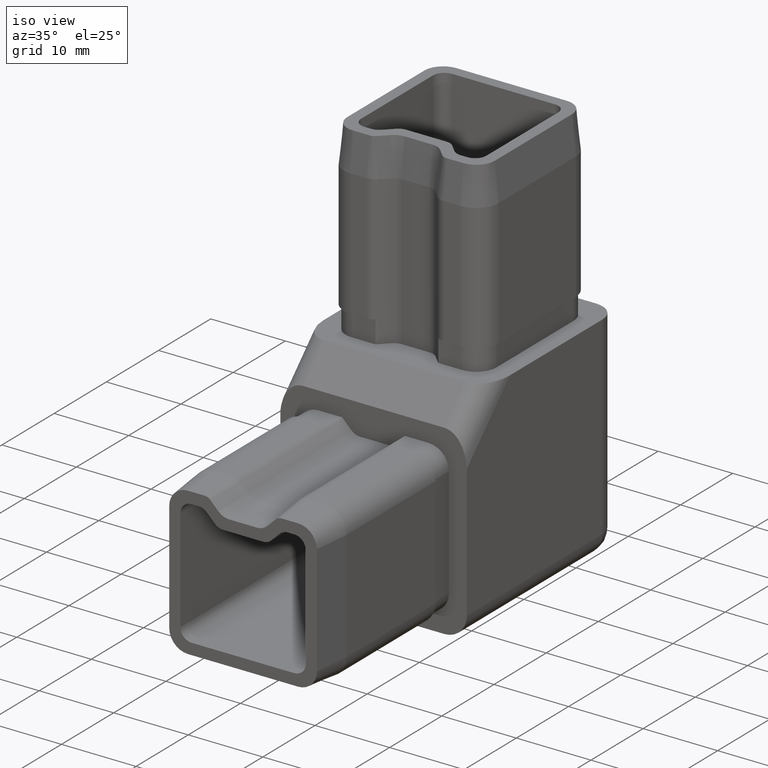
[diagram: clean part render]
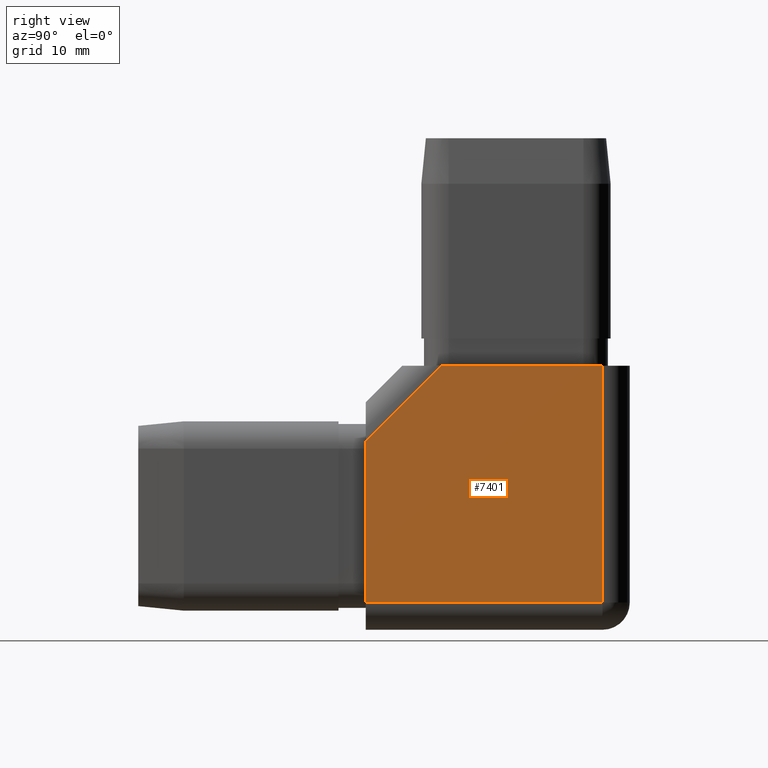
[diagram: tour spotlight — one face highlighted and labeled with its STEP entity id]
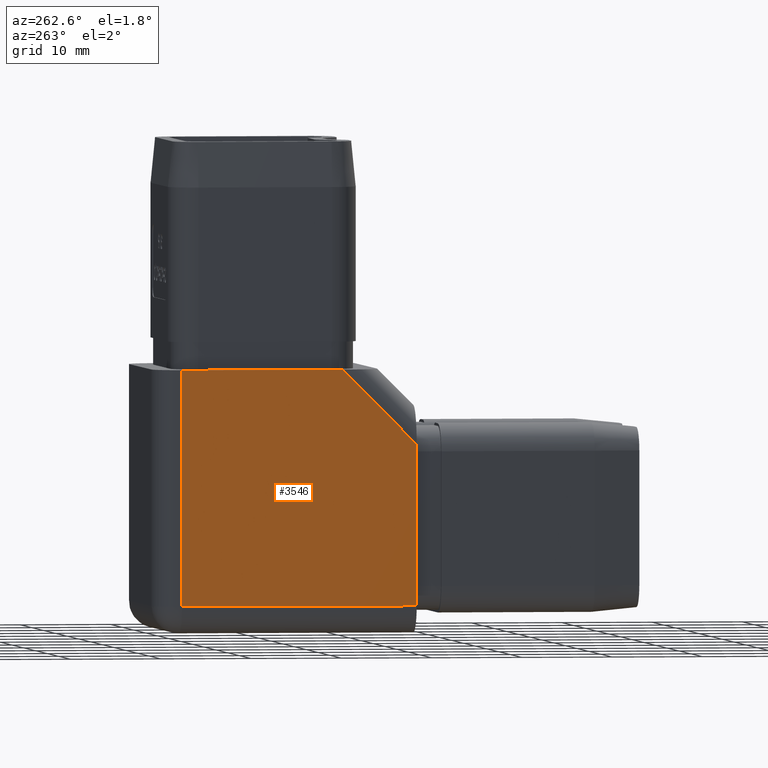
[diagram: tour spotlight — one face highlighted and labeled with its STEP entity id]
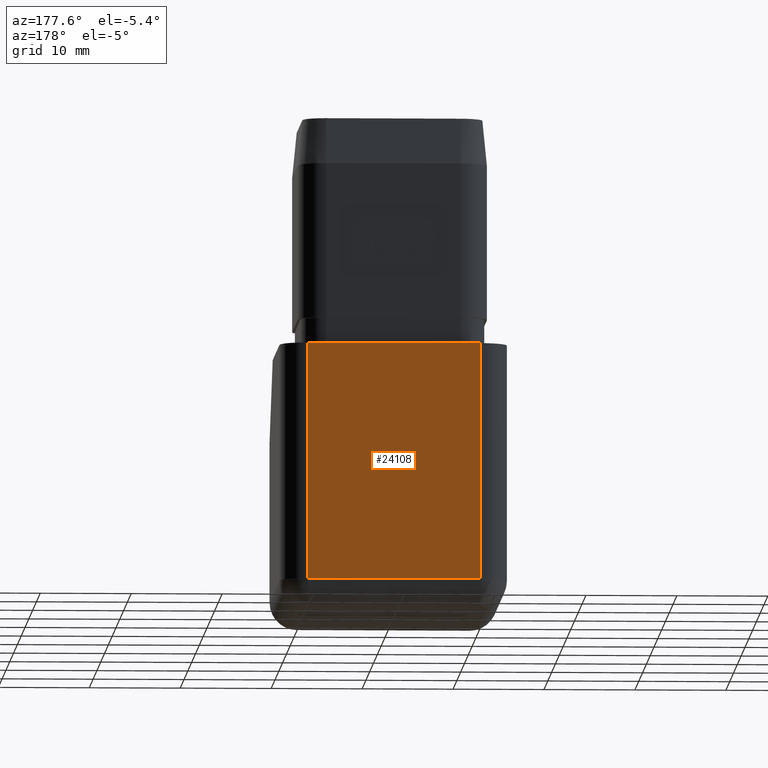
[diagram: tour spotlight — one face highlighted and labeled with its STEP entity id]
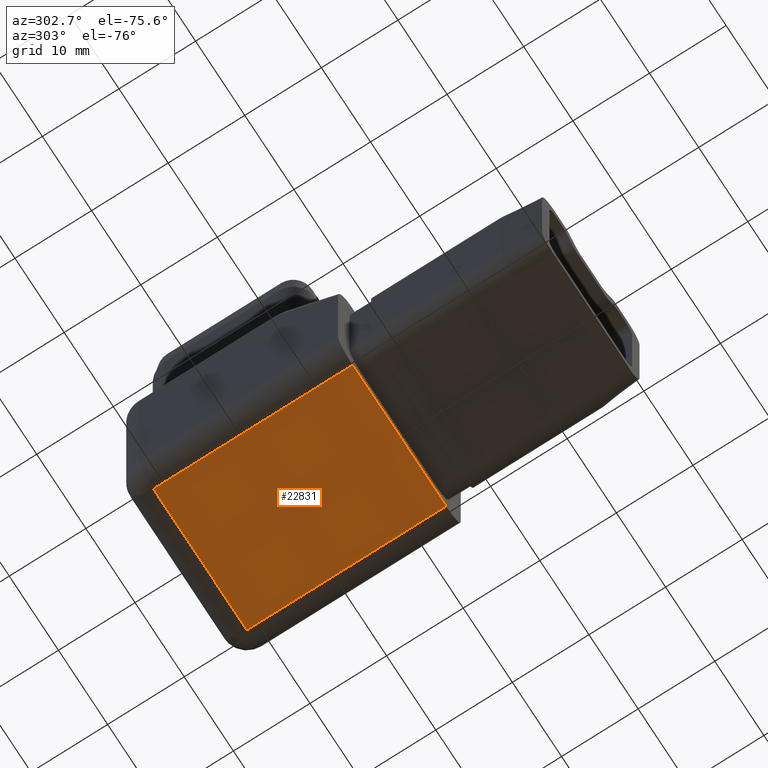
[diagram: tour spotlight — one face highlighted and labeled with its STEP entity id]
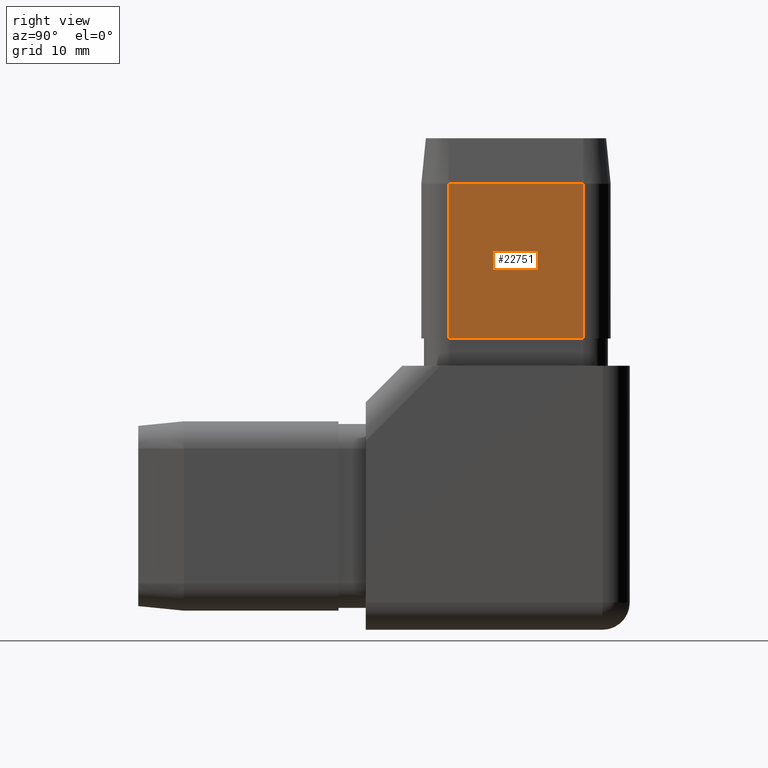
[diagram: tour spotlight — one face highlighted and labeled with its STEP entity id]
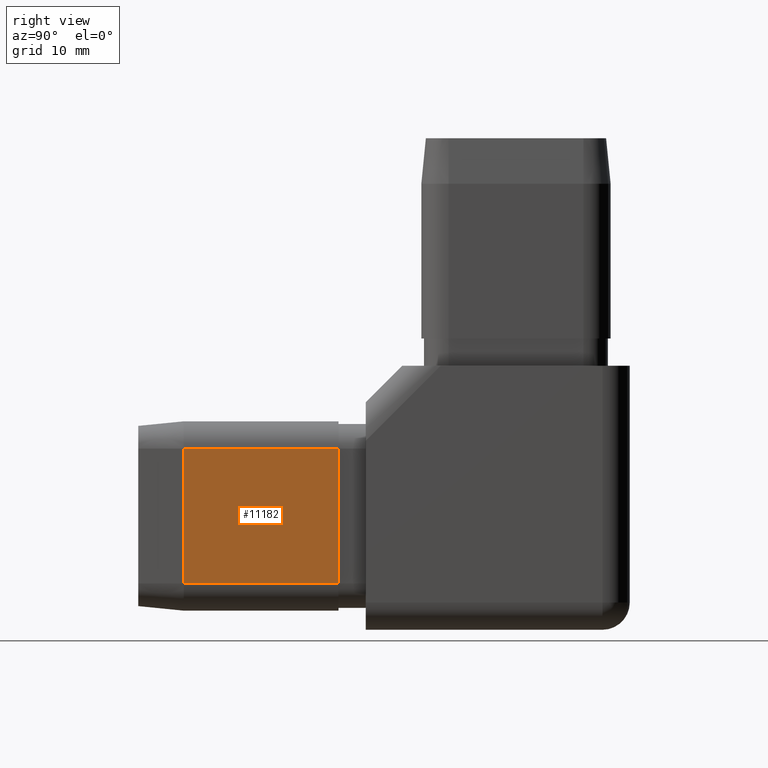
[diagram: tour spotlight — one face highlighted and labeled with its STEP entity id]
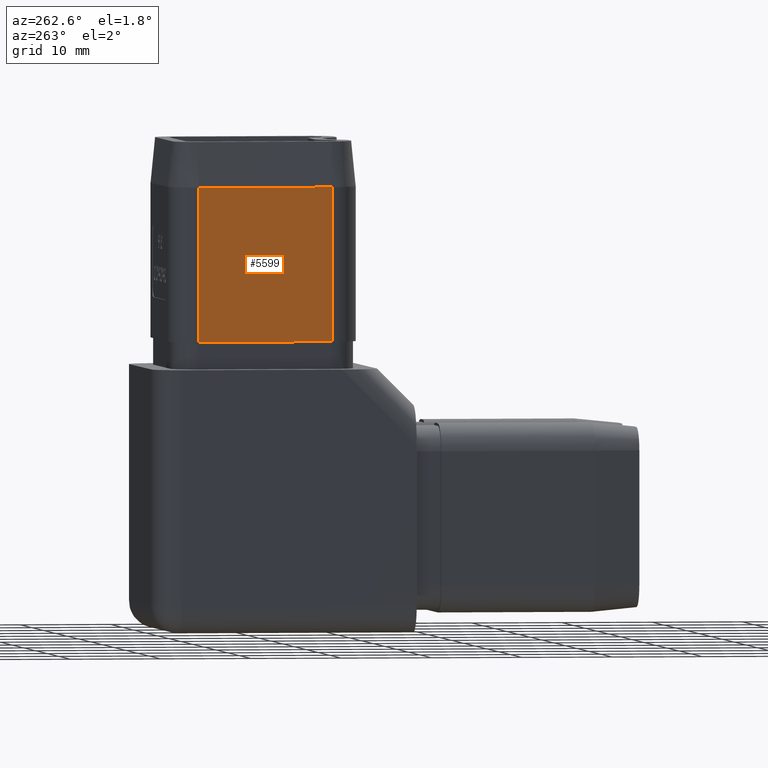
[diagram: tour spotlight — one face highlighted and labeled with its STEP entity id]
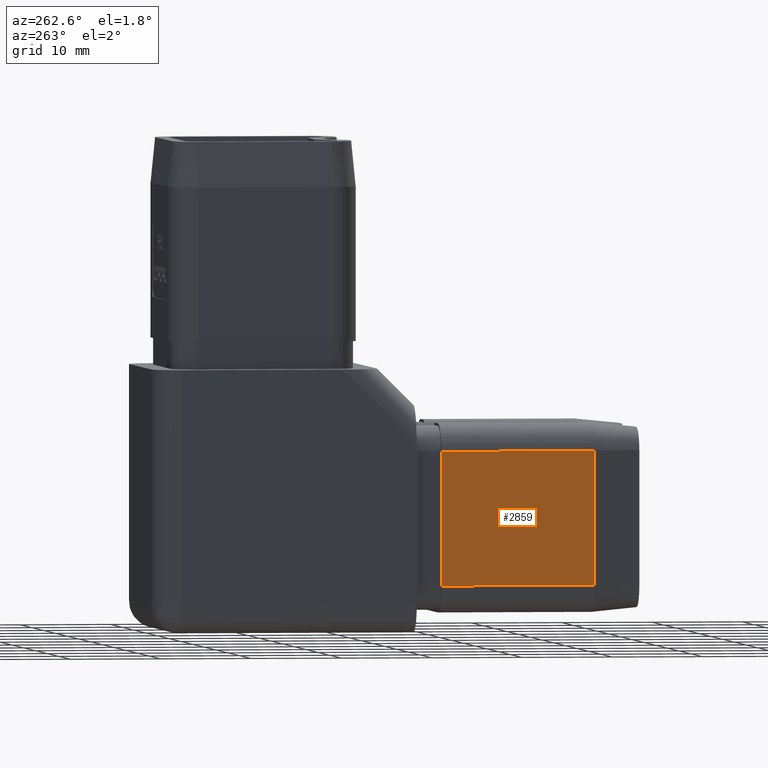
[diagram: tour spotlight — one face highlighted and labeled with its STEP entity id]
A machine part: a face-by-face anatomy tour. The part has 556 B-rep faces; the first image is the clean iso view, then the 8 largest visible faces are spotlighted one at a time (largest first), each with its STEP entity span.

Face 1 — right view, entity #7401. In plain terms, the highlighted planar face has unit normal (-1, -0, 0).
Definition (entity closure, byte-faithful):
#209 = LINE ( 'NONE', #7122, #22367 ) ;
#326 = VECTOR ( 'NONE', #7597, 1000.000000000000000 ) ;
#1084 = ORIENTED_EDGE ( 'NONE', *, *, #13699, .T. ) ;
#1322 = VECTOR ( 'NONE', #11651, 1000.000000000000000 ) ;
#2409 = CARTESIAN_POINT ( 'NONE',  ( 12.50000000000000000, 11.50000000000000000, 14.50000000000000000 ) ) ;
#3809 = CARTESIAN_POINT ( 'NONE',  ( 12.50000000000000000, 11.50000000000000000, 14.50000000000000000 ) ) ;
#4757 = ORIENTED_EDGE ( 'NONE', *, *, #12095, .T. ) ;
#7122 = CARTESIAN_POINT ( 'NONE',  ( 12.50000000000000400, -14.50000000000000200, 14.50000000000000000 ) ) ;
#7197 = DIRECTION ( 'NONE',  ( -0.0000000000000000000, -0.0000000000000000000, -1.000000000000000000 ) ) ;
#7327 = VERTEX_POINT ( 'NONE', #8287 ) ;
#7376 = DIRECTION ( 'NONE',  ( 8.459549885149632900E-017, -0.7071067811865461300, -0.7071067811865489100 ) ) ;
#7401 = ADVANCED_FACE ( 'NONE', ( #23969 ), #8441, .F. ) ;
#7597 = DIRECTION ( 'NONE',  ( -1.196361017915039200E-016, 1.000000000000000000, 0.0000000000000000000 ) ) ;
#7863 = VERTEX_POINT ( 'NONE', #14275 ) ;
#8266 = LINE ( 'NONE', #20568, #18153 ) ;
#8287 = CARTESIAN_POINT ( 'NONE',  ( 12.50000000000000400, -14.50000000000000200, -11.49999999999999500 ) ) ;
#8441 = PLANE ( 'NONE',  #18860 ) ;
#8561 = EDGE_CURVE ( 'NONE', #9693, #24238, #8266, .T. ) ;
#9508 = CARTESIAN_POINT ( 'NONE',  ( 12.50000000000000000, 14.49999999999999800, -11.50000000000000200 ) ) ;
#9693 = VERTEX_POINT ( 'NONE', #14794 ) ;
#10442 = DIRECTION ( 'NONE',  ( 1.196361017915039200E-016, -1.000000000000000000, 0.0000000000000000000 ) ) ;
#10642 = CARTESIAN_POINT ( 'NONE',  ( 12.50000000000000000, 11.50000000000000000, -11.50000000000000200 ) ) ;
#11486 = EDGE_LOOP ( 'NONE', ( #12523, #15927, #4757, #16075, #1084 ) ) ;
#11545 = EDGE_CURVE ( 'NONE', #9693, #7863, #21476, .T. ) ;
#11651 = DIRECTION ( 'NONE',  ( -0.0000000000000000000, -0.0000000000000000000, 1.000000000000000000 ) ) ;
#12095 = EDGE_CURVE ( 'NONE', #7863, #7327, #209, .T. ) ;
#12523 = ORIENTED_EDGE ( 'NONE', *, *, #8561, .F. ) ;
#13699 = EDGE_CURVE ( 'NONE', #20744, #24238, #25359, .T. ) ;
#14275 = CARTESIAN_POINT ( 'NONE',  ( 12.50000000000000400, -14.50000000000000200, 6.257359312880717000 ) ) ;
#14794 = CARTESIAN_POINT ( 'NONE',  ( 12.50000000000000200, -6.257359312880739200, 14.50000000000000000 ) ) ;
#15927 = ORIENTED_EDGE ( 'NONE', *, *, #11545, .T. ) ;
#16075 = ORIENTED_EDGE ( 'NONE', *, *, #23771, .T. ) ;
#18153 = VECTOR ( 'NONE', #22604, 1000.000000000000000 ) ;
#18783 = LINE ( 'NONE', #9508, #326 ) ;
#18860 = AXIS2_PLACEMENT_3D ( 'NONE', #24197, #20039, #10442 ) ;
#20039 = DIRECTION ( 'NONE',  ( -1.000000000000000000, -1.196361017915039200E-016, 0.0000000000000000000 ) ) ;
#20566 = VECTOR ( 'NONE', #7376, 1000.000000000000100 ) ;
#20568 = CARTESIAN_POINT ( 'NONE',  ( 12.50000000000000000, 14.49999999999999800, 14.50000000000000000 ) ) ;
#20744 = VERTEX_POINT ( 'NONE', #10642 ) ;
#21083 = CARTESIAN_POINT ( 'NONE',  ( 12.50000000000000400, -12.37867965644036000, 8.378679656440363400 ) ) ;
#21476 = LINE ( 'NONE', #21083, #20566 ) ;
#22367 = VECTOR ( 'NONE', #7197, 1000.000000000000000 ) ;
#22604 = DIRECTION ( 'NONE',  ( -1.196361017915039500E-016, 1.000000000000000000, -0.0000000000000000000 ) ) ;
#23771 = EDGE_CURVE ( 'NONE', #7327, #20744, #18783, .T. ) ;
#23969 = FACE_OUTER_BOUND ( 'NONE', #11486, .T. ) ;
#24197 = CARTESIAN_POINT ( 'NONE',  ( 12.50000000000000000, 14.49999999999999800, 14.50000000000000000 ) ) ;
#24238 = VERTEX_POINT ( 'NONE', #2409 ) ;
#25359 = LINE ( 'NONE', #3809, #1322 ) ;

Face 2 — auxiliary view, entity #3546. In plain terms, the highlighted planar face has unit normal (1, 0, -0).
Definition (entity closure, byte-faithful):
#246 = VECTOR ( 'NONE', #25498, 1000.000000000000000 ) ;
#259 = DIRECTION ( 'NONE',  ( 0.0000000000000000000, 0.0000000000000000000, -1.000000000000000000 ) ) ;
#1346 = DIRECTION ( 'NONE',  ( -1.196361017915039200E-016, 1.000000000000000000, 0.0000000000000000000 ) ) ;
#2718 = VERTEX_POINT ( 'NONE', #11256 ) ;
#3074 = EDGE_CURVE ( 'NONE', #20051, #13731, #23763, .T. ) ;
#3546 = ADVANCED_FACE ( 'NONE', ( #9262 ), #5305, .F. ) ;
#3913 = VECTOR ( 'NONE', #7662, 1000.000000000000000 ) ;
#4817 = DIRECTION ( 'NONE',  ( -8.459549885149632900E-017, 0.7071067811865461300, 0.7071067811865489100 ) ) ;
#4826 = CARTESIAN_POINT ( 'NONE',  ( -12.49999999999999600, -14.50000000000000200, -11.49999999999999500 ) ) ;
#4886 = ORIENTED_EDGE ( 'NONE', *, *, #3074, .F. ) ;
#5305 = PLANE ( 'NONE',  #23504 ) ;
#5812 = DIRECTION ( 'NONE',  ( 1.196361017915039500E-016, -1.000000000000000000, 0.0000000000000000000 ) ) ;
#7662 = DIRECTION ( 'NONE',  ( 1.196361017915039200E-016, -1.000000000000000000, 0.0000000000000000000 ) ) ;
#8291 = LINE ( 'NONE', #11765, #12914 ) ;
#8975 = ORIENTED_EDGE ( 'NONE', *, *, #20200, .F. ) ;
#9262 = FACE_OUTER_BOUND ( 'NONE', #11131, .T. ) ;
#9376 = CARTESIAN_POINT ( 'NONE',  ( -12.50000000000000000, 11.50000000000000000, -11.50000000000000200 ) ) ;
#9513 = CARTESIAN_POINT ( 'NONE',  ( -12.49999999999999800, -6.257359312880746300, 14.50000000000000000 ) ) ;
#9661 = CARTESIAN_POINT ( 'NONE',  ( -12.49999999999999600, -14.50000000000000200, 14.50000000000000000 ) ) ;
#9786 = VECTOR ( 'NONE', #4817, 1000.000000000000100 ) ;
#10937 = CARTESIAN_POINT ( 'NONE',  ( -12.50000000000000000, 11.50000000000000000, 14.50000000000000000 ) ) ;
#10968 = VERTEX_POINT ( 'NONE', #4826 ) ;
#11119 = EDGE_CURVE ( 'NONE', #21226, #10968, #20883, .T. ) ;
#11131 = EDGE_LOOP ( 'NONE', ( #8975, #16843, #4886, #24028, #15302 ) ) ;
#11256 = CARTESIAN_POINT ( 'NONE',  ( -12.49999999999999600, -14.50000000000000200, 6.257359312880720600 ) ) ;
#11425 = DIRECTION ( 'NONE',  ( 1.000000000000000000, 1.196361017915039200E-016, -0.0000000000000000000 ) ) ;
#11765 = CARTESIAN_POINT ( 'NONE',  ( -12.50000000000000000, 11.50000000000000000, 14.50000000000000000 ) ) ;
#12724 = CARTESIAN_POINT ( 'NONE',  ( -12.49999999999999600, -8.378679656440372300, 12.37867965644036900 ) ) ;
#12914 = VECTOR ( 'NONE', #259, 1000.000000000000000 ) ;
#13172 = EDGE_CURVE ( 'NONE', #20051, #21226, #8291, .T. ) ;
#13731 = VERTEX_POINT ( 'NONE', #9513 ) ;
#15302 = ORIENTED_EDGE ( 'NONE', *, *, #11119, .T. ) ;
#16843 = ORIENTED_EDGE ( 'NONE', *, *, #20414, .T. ) ;
#17506 = LINE ( 'NONE', #9661, #246 ) ;
#20051 = VERTEX_POINT ( 'NONE', #10937 ) ;
#20200 = EDGE_CURVE ( 'NONE', #2718, #10968, #17506, .T. ) ;
#20414 = EDGE_CURVE ( 'NONE', #2718, #13731, #22102, .T. ) ;
#20883 = LINE ( 'NONE', #21551, #3913 ) ;
#21023 = VECTOR ( 'NONE', #5812, 1000.000000000000000 ) ;
#21226 = VERTEX_POINT ( 'NONE', #9376 ) ;
#21327 = CARTESIAN_POINT ( 'NONE',  ( -12.50000000000000000, 14.49999999999999800, 14.50000000000000000 ) ) ;
#21551 = CARTESIAN_POINT ( 'NONE',  ( -12.50000000000000000, 14.49999999999999800, -11.50000000000000200 ) ) ;
#22102 = LINE ( 'NONE', #12724, #9786 ) ;
#23504 = AXIS2_PLACEMENT_3D ( 'NONE', #25279, #11425, #1346 ) ;
#23763 = LINE ( 'NONE', #21327, #21023 ) ;
#24028 = ORIENTED_EDGE ( 'NONE', *, *, #13172, .T. ) ;
#25279 = CARTESIAN_POINT ( 'NONE',  ( -12.50000000000000000, 14.49999999999999800, 14.50000000000000000 ) ) ;
#25498 = DIRECTION ( 'NONE',  ( -0.0000000000000000000, -0.0000000000000000000, -1.000000000000000000 ) ) ;

Face 3 — auxiliary view, entity #24108. In plain terms, the highlighted planar face has unit normal (0, -1, 0).
Definition (entity closure, byte-faithful):
#87 = VECTOR ( 'NONE', #2896, 1000.000000000000000 ) ;
#996 = EDGE_CURVE ( 'NONE', #17252, #23395, #9368, .T. ) ;
#1968 = VERTEX_POINT ( 'NONE', #19847 ) ;
#2061 = EDGE_CURVE ( 'NONE', #1968, #17252, #16233, .T. ) ;
#2675 = CARTESIAN_POINT ( 'NONE',  ( -12.50000000000000000, 14.49999999999999800, -11.50000000000000200 ) ) ;
#2896 = DIRECTION ( 'NONE',  ( 0.0000000000000000000, 0.0000000000000000000, -1.000000000000000000 ) ) ;
#4966 = LINE ( 'NONE', #14680, #87 ) ;
#6184 = ORIENTED_EDGE ( 'NONE', *, *, #2061, .T. ) ;
#8957 = VECTOR ( 'NONE', #21444, 1000.000000000000000 ) ;
#9368 = LINE ( 'NONE', #9616, #23845 ) ;
#9616 = CARTESIAN_POINT ( 'NONE',  ( -9.500000000000001800, 14.49999999999999800, 14.50000000000000000 ) ) ;
#11534 = DIRECTION ( 'NONE',  ( 0.0000000000000000000, -0.0000000000000000000, -1.000000000000000000 ) ) ;
#11607 = ORIENTED_EDGE ( 'NONE', *, *, #16419, .T. ) ;
#11735 = LINE ( 'NONE', #15143, #8957 ) ;
#13529 = CARTESIAN_POINT ( 'NONE',  ( -12.50000000000000000, 14.49999999999999800, 14.50000000000000000 ) ) ;
#13870 = CARTESIAN_POINT ( 'NONE',  ( 9.500000000000001800, 14.49999999999999800, 14.50000000000000000 ) ) ;
#13928 = EDGE_LOOP ( 'NONE', ( #6184, #21796, #16964, #11607 ) ) ;
#14292 = DIRECTION ( 'NONE',  ( -1.000000000000000000, 0.0000000000000000000, 0.0000000000000000000 ) ) ;
#14680 = CARTESIAN_POINT ( 'NONE',  ( 9.500000000000001800, 14.49999999999999800, 14.50000000000000000 ) ) ;
#14988 = VECTOR ( 'NONE', #14292, 1000.000000000000000 ) ;
#15143 = CARTESIAN_POINT ( 'NONE',  ( -12.50000000000000000, 14.49999999999999800, 14.50000000000000000 ) ) ;
#16233 = LINE ( 'NONE', #2675, #14988 ) ;
#16414 = AXIS2_PLACEMENT_3D ( 'NONE', #13529, #21469, #11534 ) ;
#16419 = EDGE_CURVE ( 'NONE', #24213, #1968, #4966, .T. ) ;
#16964 = ORIENTED_EDGE ( 'NONE', *, *, #17195, .F. ) ;
#17195 = EDGE_CURVE ( 'NONE', #24213, #23395, #11735, .T. ) ;
#17252 = VERTEX_POINT ( 'NONE', #21358 ) ;
#19399 = FACE_OUTER_BOUND ( 'NONE', #13928, .T. ) ;
#19847 = CARTESIAN_POINT ( 'NONE',  ( 9.500000000000001800, 14.49999999999999800, -11.50000000000000200 ) ) ;
#21358 = CARTESIAN_POINT ( 'NONE',  ( -9.500000000000001800, 14.49999999999999800, -11.50000000000000200 ) ) ;
#21444 = DIRECTION ( 'NONE',  ( -1.000000000000000000, -0.0000000000000000000, -0.0000000000000000000 ) ) ;
#21469 = DIRECTION ( 'NONE',  ( 0.0000000000000000000, -1.000000000000000000, 0.0000000000000000000 ) ) ;
#21796 = ORIENTED_EDGE ( 'NONE', *, *, #996, .T. ) ;
#21845 = DIRECTION ( 'NONE',  ( -0.0000000000000000000, -0.0000000000000000000, 1.000000000000000000 ) ) ;
#21927 = CARTESIAN_POINT ( 'NONE',  ( -9.500000000000001800, 14.49999999999999800, 14.50000000000000000 ) ) ;
#23395 = VERTEX_POINT ( 'NONE', #21927 ) ;
#23845 = VECTOR ( 'NONE', #21845, 1000.000000000000000 ) ;
#24108 = ADVANCED_FACE ( 'NONE', ( #19399 ), #25233, .F. ) ;
#24213 = VERTEX_POINT ( 'NONE', #13870 ) ;
#25233 = PLANE ( 'NONE',  #16414 ) ;

Face 4 — auxiliary view, entity #22831. In plain terms, the highlighted planar face has unit normal (-0, 0, 1).
Definition (entity closure, byte-faithful):
#299 = ORIENTED_EDGE ( 'NONE', *, *, #8526, .T. ) ;
#733 = EDGE_CURVE ( 'NONE', #21989, #3365, #4747, .T. ) ;
#915 = DIRECTION ( 'NONE',  ( 1.196361017915039200E-016, -1.000000000000000000, 0.0000000000000000000 ) ) ;
#2118 = LINE ( 'NONE', #10625, #20932 ) ;
#3365 = VERTEX_POINT ( 'NONE', #12354 ) ;
#4747 = LINE ( 'NONE', #18401, #10925 ) ;
#4903 = LINE ( 'NONE', #10722, #25227 ) ;
#5610 = EDGE_CURVE ( 'NONE', #3365, #9172, #2118, .T. ) ;
#6173 = CARTESIAN_POINT ( 'NONE',  ( 9.500000000000005300, -14.50000000000000200, -14.50000000000000000 ) ) ;
#6320 = CARTESIAN_POINT ( 'NONE',  ( -9.499999999999998200, -14.50000000000000200, -14.50000000000000000 ) ) ;
#7290 = EDGE_LOOP ( 'NONE', ( #15567, #9673, #20040, #299 ) ) ;
#7625 = VECTOR ( 'NONE', #18940, 1000.000000000000000 ) ;
#8089 = CARTESIAN_POINT ( 'NONE',  ( 0.0000000000000000000, 0.0000000000000000000, -14.50000000000000000 ) ) ;
#8526 = EDGE_CURVE ( 'NONE', #9172, #23379, #4903, .T. ) ;
#9172 = VERTEX_POINT ( 'NONE', #16737 ) ;
#9673 = ORIENTED_EDGE ( 'NONE', *, *, #733, .T. ) ;
#10625 = CARTESIAN_POINT ( 'NONE',  ( 0.0000000000000000000, 11.50000000000000000, -14.50000000000000000 ) ) ;
#10722 = CARTESIAN_POINT ( 'NONE',  ( 9.500000000000003600, 1.136542967019287700E-015, -14.50000000000000000 ) ) ;
#10925 = VECTOR ( 'NONE', #22099, 1000.000000000000000 ) ;
#12045 = PLANE ( 'NONE',  #17917 ) ;
#12354 = CARTESIAN_POINT ( 'NONE',  ( -9.500000000000001800, 11.50000000000000000, -14.50000000000000000 ) ) ;
#15567 = ORIENTED_EDGE ( 'NONE', *, *, #20377, .F. ) ;
#16452 = CARTESIAN_POINT ( 'NONE',  ( -12.49999999999999600, -14.50000000000000200, -14.50000000000000000 ) ) ;
#16583 = DIRECTION ( 'NONE',  ( 1.000000000000000000, -0.0000000000000000000, 0.0000000000000000000 ) ) ;
#16737 = CARTESIAN_POINT ( 'NONE',  ( 9.500000000000001800, 11.50000000000000000, -14.50000000000000000 ) ) ;
#17175 = LINE ( 'NONE', #16452, #7625 ) ;
#17917 = AXIS2_PLACEMENT_3D ( 'NONE', #8089, #23936, #21894 ) ;
#18401 = CARTESIAN_POINT ( 'NONE',  ( -9.500000000000000000, -1.136542967019287100E-015, -14.50000000000000000 ) ) ;
#18940 = DIRECTION ( 'NONE',  ( 1.000000000000000000, 0.0000000000000000000, 0.0000000000000000000 ) ) ;
#20040 = ORIENTED_EDGE ( 'NONE', *, *, #5610, .T. ) ;
#20377 = EDGE_CURVE ( 'NONE', #21989, #23379, #17175, .T. ) ;
#20932 = VECTOR ( 'NONE', #16583, 1000.000000000000000 ) ;
#21894 = DIRECTION ( 'NONE',  ( 1.000000000000000000, 0.0000000000000000000, 0.0000000000000000000 ) ) ;
#21989 = VERTEX_POINT ( 'NONE', #6320 ) ;
#22099 = DIRECTION ( 'NONE',  ( -1.196361017915039200E-016, 1.000000000000000000, -0.0000000000000000000 ) ) ;
#22831 = ADVANCED_FACE ( 'NONE', ( #22948 ), #12045, .F. ) ;
#22948 = FACE_OUTER_BOUND ( 'NONE', #7290, .T. ) ;
#23379 = VERTEX_POINT ( 'NONE', #6173 ) ;
#23936 = DIRECTION ( 'NONE',  ( -0.0000000000000000000, 0.0000000000000000000, 1.000000000000000000 ) ) ;
#25227 = VECTOR ( 'NONE', #915, 1000.000000000000000 ) ;

Face 5 — right view, entity #22751. In plain terms, the highlighted planar face has unit normal (-1, -0, 0).
Definition (entity closure, byte-faithful):
#210 = DIRECTION ( 'NONE',  ( 1.668003342285391300E-016, -1.000000000000000000, 0.0000000000000000000 ) ) ;
#450 = DIRECTION ( 'NONE',  ( -1.000000000000000000, -1.668003342285391300E-016, 0.0000000000000000000 ) ) ;
#1582 = ORIENTED_EDGE ( 'NONE', *, *, #4716, .F. ) ;
#1872 = CARTESIAN_POINT ( 'NONE',  ( 10.40000000000000900, 9.400000000000000400, 17.50000000000000700 ) ) ;
#3053 = CARTESIAN_POINT ( 'NONE',  ( 10.40000000000000900, 9.400000000000000400, 34.50000000000000000 ) ) ;
#3653 = VERTEX_POINT ( 'NONE', #1872 ) ;
#3895 = LINE ( 'NONE', #9493, #6362 ) ;
#4238 = CARTESIAN_POINT ( 'NONE',  ( 10.40000000000000600, 12.39999999999999900, 39.50000000000000000 ) ) ;
#4300 = CARTESIAN_POINT ( 'NONE',  ( 10.40000000000000900, 9.400000000000000400, 17.50000000000000700 ) ) ;
#4716 = EDGE_CURVE ( 'NONE', #3653, #5299, #22786, .T. ) ;
#4842 = LINE ( 'NONE', #3053, #10394 ) ;
#4940 = CARTESIAN_POINT ( 'NONE',  ( 10.40000000000001300, -5.400000000000003900, 34.50000000000000000 ) ) ;
#5073 = FACE_OUTER_BOUND ( 'NONE', #6464, .T. ) ;
#5299 = VERTEX_POINT ( 'NONE', #25395 ) ;
#6188 = DIRECTION ( 'NONE',  ( 2.344220913482171200E-016, -1.000000000000000000, 0.0000000000000000000 ) ) ;
#6362 = VECTOR ( 'NONE', #11461, 1000.000000000000000 ) ;
#6464 = EDGE_LOOP ( 'NONE', ( #16224, #8785, #14902, #1582 ) ) ;
#6826 = DIRECTION ( 'NONE',  ( 2.344220913482171200E-016, -1.000000000000000000, 0.0000000000000000000 ) ) ;
#8785 = ORIENTED_EDGE ( 'NONE', *, *, #9257, .T. ) ;
#9257 = EDGE_CURVE ( 'NONE', #11570, #22506, #4842, .T. ) ;
#9493 = CARTESIAN_POINT ( 'NONE',  ( 10.40000000000000900, -5.400000000000005700, 39.50000000000000000 ) ) ;
#10394 = VECTOR ( 'NONE', #6826, 1000.000000000000000 ) ;
#11253 = CARTESIAN_POINT ( 'NONE',  ( 10.40000000000000900, 9.400000000000000400, 34.50000000000000000 ) ) ;
#11461 = DIRECTION ( 'NONE',  ( 0.0000000000000000000, 0.0000000000000000000, -1.000000000000000000 ) ) ;
#11570 = VERTEX_POINT ( 'NONE', #11253 ) ;
#12304 = PLANE ( 'NONE',  #15241 ) ;
#13481 = VECTOR ( 'NONE', #25423, 1000.000000000000000 ) ;
#14097 = LINE ( 'NONE', #23358, #13481 ) ;
#14902 = ORIENTED_EDGE ( 'NONE', *, *, #21074, .T. ) ;
#15241 = AXIS2_PLACEMENT_3D ( 'NONE', #4238, #450, #210 ) ;
#16224 = ORIENTED_EDGE ( 'NONE', *, *, #19649, .T. ) ;
#19412 = VECTOR ( 'NONE', #6188, 1000.000000000000000 ) ;
#19649 = EDGE_CURVE ( 'NONE', #3653, #11570, #14097, .T. ) ;
#21074 = EDGE_CURVE ( 'NONE', #22506, #5299, #3895, .T. ) ;
#22506 = VERTEX_POINT ( 'NONE', #4940 ) ;
#22751 = ADVANCED_FACE ( 'NONE', ( #5073 ), #12304, .F. ) ;
#22786 = LINE ( 'NONE', #4300, #19412 ) ;
#23358 = CARTESIAN_POINT ( 'NONE',  ( 10.40000000000000600, 9.399999999999998600, 39.50000000000000000 ) ) ;
#25395 = CARTESIAN_POINT ( 'NONE',  ( 10.40000000000001300, -5.400000000000003900, 17.50000000000000700 ) ) ;
#25423 = DIRECTION ( 'NONE',  ( -0.0000000000000000000, -0.0000000000000000000, 1.000000000000000000 ) ) ;

Face 6 — right view, entity #11182. In plain terms, the highlighted planar face has unit normal (1, 0, -0).
Definition (entity closure, byte-faithful):
#410 = DIRECTION ( 'NONE',  ( 0.0000000000000000000, 1.000000000000000000, 4.440892098500625700E-016 ) ) ;
#521 = EDGE_LOOP ( 'NONE', ( #24791, #5591, #20177, #17530 ) ) ;
#1724 = DIRECTION ( 'NONE',  ( 1.000000000000000000, 7.407422863027828500E-032, -1.668003342285391300E-016 ) ) ;
#1820 = PLANE ( 'NONE',  #9659 ) ;
#2912 = CARTESIAN_POINT ( 'NONE',  ( 10.40000000000000900, -34.50000000000000000, -9.400000000000016300 ) ) ;
#2958 = CARTESIAN_POINT ( 'NONE',  ( 10.40000000000000600, -17.50000000000000700, -9.400000000000009200 ) ) ;
#3701 = DIRECTION ( 'NONE',  ( -1.668003342285391300E-016, 0.0000000000000000000, -1.000000000000000000 ) ) ;
#3922 = CARTESIAN_POINT ( 'NONE',  ( 10.40000000000000900, -39.50000000000000700, 5.399999999999987900 ) ) ;
#4112 = CARTESIAN_POINT ( 'NONE',  ( 10.40000000000000600, -39.50000000000000000, -9.400000000000016300 ) ) ;
#4932 = EDGE_CURVE ( 'NONE', #9722, #9423, #23093, .T. ) ;
#5142 = FACE_OUTER_BOUND ( 'NONE', #521, .T. ) ;
#5591 = ORIENTED_EDGE ( 'NONE', *, *, #18873, .F. ) ;
#5749 = CARTESIAN_POINT ( 'NONE',  ( 10.40000000000001300, -34.50000000000000000, 5.399999999999987900 ) ) ;
#7838 = CARTESIAN_POINT ( 'NONE',  ( 10.40000000000000900, -17.50000000000001100, 5.399999999999995000 ) ) ;
#8210 = VERTEX_POINT ( 'NONE', #2912 ) ;
#8306 = DIRECTION ( 'NONE',  ( 2.344220913482171200E-016, 0.0000000000000000000, 1.000000000000000000 ) ) ;
#8608 = VECTOR ( 'NONE', #8306, 1000.000000000000000 ) ;
#9423 = VERTEX_POINT ( 'NONE', #7838 ) ;
#9659 = AXIS2_PLACEMENT_3D ( 'NONE', #11713, #1724, #3701 ) ;
#9722 = VERTEX_POINT ( 'NONE', #21361 ) ;
#10123 = DIRECTION ( 'NONE',  ( 1.094764425253763300E-047, -1.000000000000000000, -4.440892098500625200E-016 ) ) ;
#11147 = LINE ( 'NONE', #3922, #17309 ) ;
#11182 = ADVANCED_FACE ( 'NONE', ( #5142 ), #1820, .T. ) ;
#11713 = CARTESIAN_POINT ( 'NONE',  ( 10.40000000000000600, -39.50000000000000000, -12.40000000000001500 ) ) ;
#15994 = LINE ( 'NONE', #4112, #20632 ) ;
#16622 = EDGE_CURVE ( 'NONE', #9423, #24477, #11147, .T. ) ;
#17309 = VECTOR ( 'NONE', #10123, 1000.000000000000000 ) ;
#17530 = ORIENTED_EDGE ( 'NONE', *, *, #4932, .T. ) ;
#18873 = EDGE_CURVE ( 'NONE', #8210, #24477, #19135, .T. ) ;
#19067 = DIRECTION ( 'NONE',  ( 2.344220913482171200E-016, -2.344220913482171200E-016, 1.000000000000000000 ) ) ;
#19135 = LINE ( 'NONE', #24060, #8608 ) ;
#19413 = EDGE_CURVE ( 'NONE', #8210, #9722, #15994, .T. ) ;
#19723 = VECTOR ( 'NONE', #19067, 1000.000000000000000 ) ;
#20177 = ORIENTED_EDGE ( 'NONE', *, *, #19413, .T. ) ;
#20632 = VECTOR ( 'NONE', #410, 1000.000000000000000 ) ;
#21361 = CARTESIAN_POINT ( 'NONE',  ( 10.40000000000000600, -17.50000000000000700, -9.400000000000009200 ) ) ;
#23093 = LINE ( 'NONE', #2958, #19723 ) ;
#24060 = CARTESIAN_POINT ( 'NONE',  ( 10.40000000000000900, -34.50000000000000000, -9.400000000000016300 ) ) ;
#24477 = VERTEX_POINT ( 'NONE', #5749 ) ;
#24791 = ORIENTED_EDGE ( 'NONE', *, *, #16622, .T. ) ;

Face 7 — auxiliary view, entity #5599. In plain terms, the highlighted planar face has unit normal (1, 0, 0).
Definition (entity closure, byte-faithful):
#697 = DIRECTION ( 'NONE',  ( 0.0000000000000000000, 0.0000000000000000000, -1.000000000000000000 ) ) ;
#868 = FACE_OUTER_BOUND ( 'NONE', #19198, .T. ) ;
#924 = AXIS2_PLACEMENT_3D ( 'NONE', #4898, #6858, #22472 ) ;
#1562 = VECTOR ( 'NONE', #697, 1000.000000000000000 ) ;
#2031 = CARTESIAN_POINT ( 'NONE',  ( -10.40000000000001100, 9.399999999999995000, 34.50000000000000000 ) ) ;
#2830 = ORIENTED_EDGE ( 'NONE', *, *, #21497, .T. ) ;
#4898 = CARTESIAN_POINT ( 'NONE',  ( -10.40000000000000200, -8.400000000000007500, 39.50000000000000000 ) ) ;
#5121 = LINE ( 'NONE', #19134, #10652 ) ;
#5238 = LINE ( 'NONE', #24511, #1562 ) ;
#5429 = LINE ( 'NONE', #22279, #15294 ) ;
#5599 = ADVANCED_FACE ( 'NONE', ( #868 ), #6687, .F. ) ;
#5805 = VERTEX_POINT ( 'NONE', #23120 ) ;
#6687 = PLANE ( 'NONE',  #924 ) ;
#6858 = DIRECTION ( 'NONE',  ( 1.000000000000000000, 0.0000000000000000000, 0.0000000000000000000 ) ) ;
#8343 = DIRECTION ( 'NONE',  ( 0.0000000000000000000, 1.000000000000000000, 0.0000000000000000000 ) ) ;
#9519 = VERTEX_POINT ( 'NONE', #17944 ) ;
#10454 = ORIENTED_EDGE ( 'NONE', *, *, #18019, .T. ) ;
#10641 = ORIENTED_EDGE ( 'NONE', *, *, #22796, .F. ) ;
#10652 = VECTOR ( 'NONE', #11386, 1000.000000000000000 ) ;
#11386 = DIRECTION ( 'NONE',  ( -0.0000000000000000000, -0.0000000000000000000, 1.000000000000000000 ) ) ;
#14424 = VERTEX_POINT ( 'NONE', #22937 ) ;
#14599 = DIRECTION ( 'NONE',  ( 0.0000000000000000000, 1.000000000000000000, 0.0000000000000000000 ) ) ;
#15178 = ORIENTED_EDGE ( 'NONE', *, *, #25244, .T. ) ;
#15294 = VECTOR ( 'NONE', #14599, 1000.000000000000000 ) ;
#16648 = VERTEX_POINT ( 'NONE', #2031 ) ;
#17097 = VECTOR ( 'NONE', #8343, 1000.000000000000000 ) ;
#17944 = CARTESIAN_POINT ( 'NONE',  ( -10.40000000000000400, 9.399999999999996800, 17.50000000000000700 ) ) ;
#18019 = EDGE_CURVE ( 'NONE', #16648, #9519, #5238, .T. ) ;
#19134 = CARTESIAN_POINT ( 'NONE',  ( -10.40000000000000200, -5.400000000000007500, 39.50000000000000000 ) ) ;
#19198 = EDGE_LOOP ( 'NONE', ( #15178, #2830, #10454, #10641 ) ) ;
#20156 = CARTESIAN_POINT ( 'NONE',  ( -10.40000000000000400, -5.400000000000009200, 17.50000000000000700 ) ) ;
#21497 = EDGE_CURVE ( 'NONE', #5805, #16648, #5429, .T. ) ;
#22279 = CARTESIAN_POINT ( 'NONE',  ( -10.40000000000001100, -5.400000000000011000, 34.50000000000000000 ) ) ;
#22323 = LINE ( 'NONE', #20156, #17097 ) ;
#22472 = DIRECTION ( 'NONE',  ( 0.0000000000000000000, 0.0000000000000000000, -1.000000000000000000 ) ) ;
#22796 = EDGE_CURVE ( 'NONE', #14424, #9519, #22323, .T. ) ;
#22937 = CARTESIAN_POINT ( 'NONE',  ( -10.40000000000000400, -5.400000000000009200, 17.50000000000000700 ) ) ;
#23120 = CARTESIAN_POINT ( 'NONE',  ( -10.40000000000001100, -5.400000000000011000, 34.50000000000000000 ) ) ;
#24511 = CARTESIAN_POINT ( 'NONE',  ( -10.40000000000000200, 9.399999999999998600, 39.50000000000000000 ) ) ;
#25244 = EDGE_CURVE ( 'NONE', #14424, #5805, #5121, .T. ) ;

Face 8 — auxiliary view, entity #2859. In plain terms, the highlighted planar face has unit normal (-1, 0, -0).
Definition (entity closure, byte-faithful):
#96 = VECTOR ( 'NONE', #11604, 1000.000000000000000 ) ;
#411 = PLANE ( 'NONE',  #892 ) ;
#594 = EDGE_CURVE ( 'NONE', #15600, #13644, #19566, .T. ) ;
#892 = AXIS2_PLACEMENT_3D ( 'NONE', #8304, #16071, #12346 ) ;
#1903 = CARTESIAN_POINT ( 'NONE',  ( -10.40000000000000900, -34.50000000000000000, 5.399999999999996800 ) ) ;
#2282 = ORIENTED_EDGE ( 'NONE', *, *, #19912, .T. ) ;
#2859 = ADVANCED_FACE ( 'NONE', ( #5926 ), #411, .T. ) ;
#3148 = EDGE_CURVE ( 'NONE', #18447, #23714, #6512, .T. ) ;
#3691 = CARTESIAN_POINT ( 'NONE',  ( -10.40000000000000900, -34.50000000000000000, 5.399999999999996800 ) ) ;
#4827 = CARTESIAN_POINT ( 'NONE',  ( -10.40000000000000200, -39.50000000000000700, 5.399999999999989700 ) ) ;
#5551 = CARTESIAN_POINT ( 'NONE',  ( -10.40000000000000900, -34.50000000000000000, -9.400000000000009200 ) ) ;
#5926 = FACE_OUTER_BOUND ( 'NONE', #9407, .T. ) ;
#6512 = LINE ( 'NONE', #3691, #96 ) ;
#6806 = DIRECTION ( 'NONE',  ( 0.0000000000000000000, 1.000000000000000000, 4.440892098500625200E-016 ) ) ;
#7210 = VECTOR ( 'NONE', #25295, 1000.000000000000000 ) ;
#7559 = CARTESIAN_POINT ( 'NONE',  ( -10.40000000000000200, -17.50000000000000700, 5.400000000000002100 ) ) ;
#8304 = CARTESIAN_POINT ( 'NONE',  ( -10.40000000000000200, -39.50000000000000700, 8.399999999999991500 ) ) ;
#9407 = EDGE_LOOP ( 'NONE', ( #17385, #16267, #2282, #14047 ) ) ;
#11604 = DIRECTION ( 'NONE',  ( 0.0000000000000000000, 0.0000000000000000000, -1.000000000000000000 ) ) ;
#12346 = DIRECTION ( 'NONE',  ( -0.0000000000000000000, 0.0000000000000000000, 1.000000000000000000 ) ) ;
#13221 = EDGE_CURVE ( 'NONE', #13644, #23714, #13842, .T. ) ;
#13644 = VERTEX_POINT ( 'NONE', #15622 ) ;
#13842 = LINE ( 'NONE', #21676, #23694 ) ;
#14047 = ORIENTED_EDGE ( 'NONE', *, *, #594, .T. ) ;
#15600 = VERTEX_POINT ( 'NONE', #23762 ) ;
#15622 = CARTESIAN_POINT ( 'NONE',  ( -10.40000000000000200, -17.50000000000000400, -9.400000000000005700 ) ) ;
#16071 = DIRECTION ( 'NONE',  ( -1.000000000000000000, 0.0000000000000000000, -0.0000000000000000000 ) ) ;
#16267 = ORIENTED_EDGE ( 'NONE', *, *, #3148, .F. ) ;
#16578 = LINE ( 'NONE', #4827, #17833 ) ;
#17385 = ORIENTED_EDGE ( 'NONE', *, *, #13221, .T. ) ;
#17833 = VECTOR ( 'NONE', #6806, 1000.000000000000000 ) ;
#18447 = VERTEX_POINT ( 'NONE', #1903 ) ;
#19566 = LINE ( 'NONE', #7559, #7210 ) ;
#19798 = DIRECTION ( 'NONE',  ( -0.0000000000000000000, -1.000000000000000000, -4.440892098500625700E-016 ) ) ;
#19912 = EDGE_CURVE ( 'NONE', #18447, #15600, #16578, .T. ) ;
#21676 = CARTESIAN_POINT ( 'NONE',  ( -10.40000000000000200, -39.50000000000000000, -9.400000000000016300 ) ) ;
#23694 = VECTOR ( 'NONE', #19798, 1000.000000000000000 ) ;
#23714 = VERTEX_POINT ( 'NONE', #5551 ) ;
#23762 = CARTESIAN_POINT ( 'NONE',  ( -10.40000000000000200, -17.50000000000000700, 5.400000000000002100 ) ) ;
#25295 = DIRECTION ( 'NONE',  ( 0.0000000000000000000, 2.344220913482170700E-016, -1.000000000000000000 ) ) ;